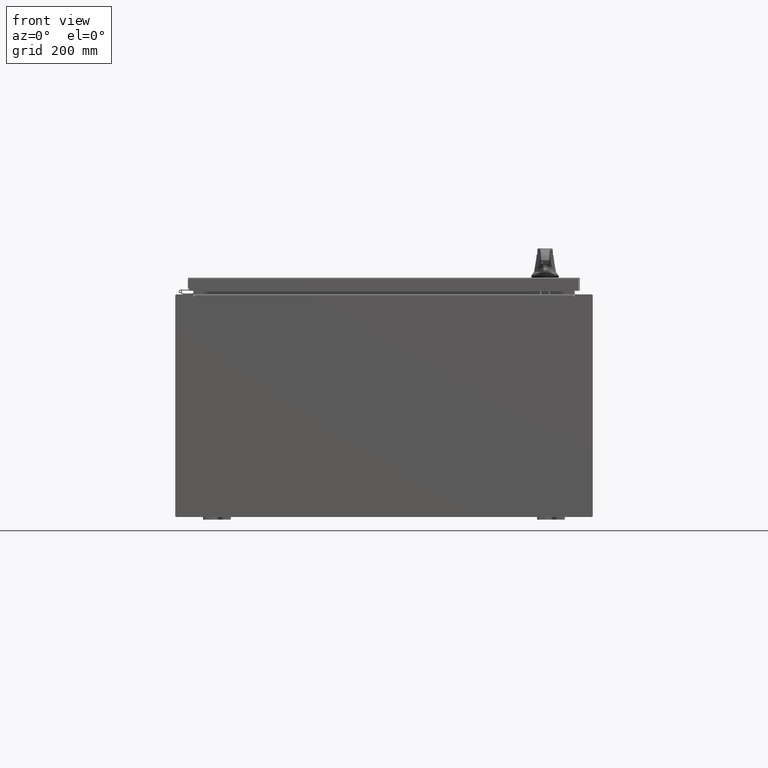
[diagram: clean part render]
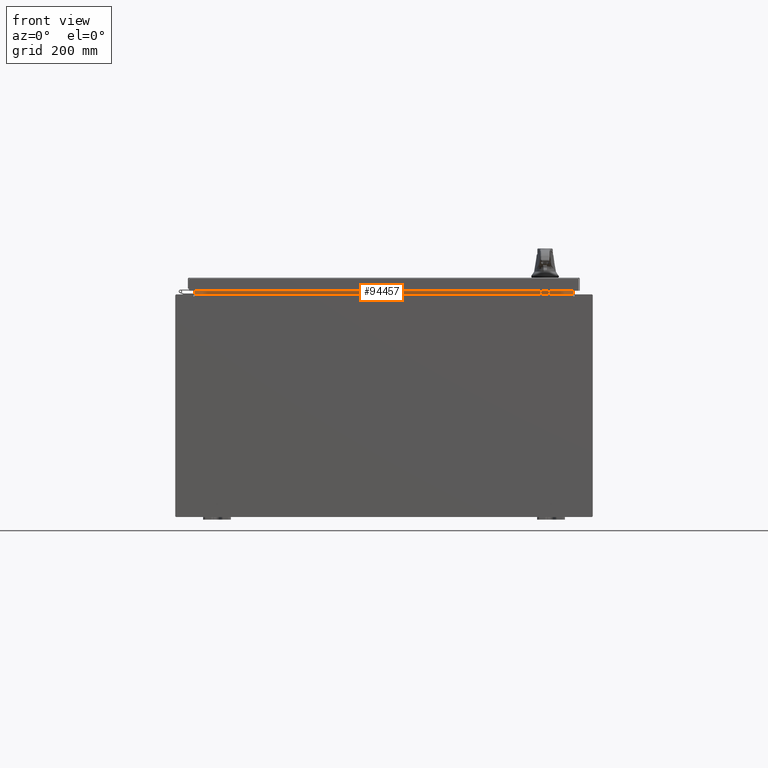
[diagram: same view with one face highlighted and labeled with its STEP entity id]
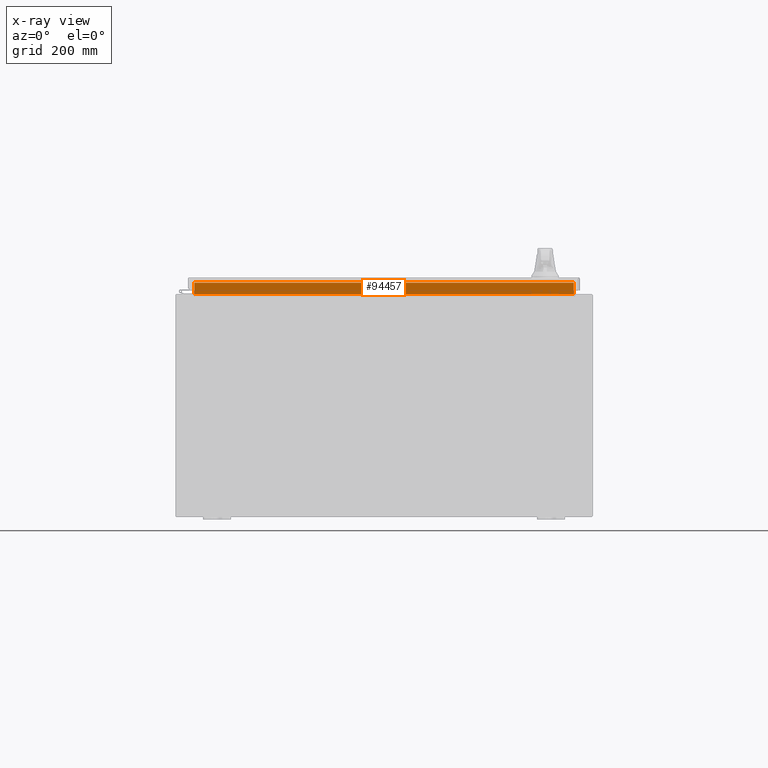
[diagram: x-ray of the same camera — body ghosted, the highlighted face saturated]
A machine part, front view. The second image highlights one B-rep face of the part: STEP entity #94457.
The next image is the same camera in x-ray: the body ghosted, the highlighted face saturated — about 0% of this face is hidden behind the body in this view.
In plain terms, the highlighted planar face has unit normal (0, -1, 0).
Its self-contained STEP definition (entity closure, byte-faithful):
#983 = EDGE_CURVE ( 'NONE', #94139, #96204, #80551, .T. ) ;
#1146 = LINE ( 'NONE', #55698, #100165 ) ;
#2982 = CARTESIAN_POINT ( 'NONE',  ( 0.0000000000000000000, -1.300299999999999800, 0.0000000000000000000 ) ) ;
#10552 = EDGE_CURVE ( 'NONE', #30023, #94139, #1146, .T. ) ;
#11100 = CARTESIAN_POINT ( 'NONE',  ( 13.63720000000000400, -1.300299999999999800, 8.837600000000001900 ) ) ;
#12606 = DIRECTION ( 'NONE',  ( 0.0000000000000000000, -0.0000000000000000000, 1.000000000000000000 ) ) ;
#13440 = DIRECTION ( 'NONE',  ( -0.0000000000000000000, -0.0000000000000000000, -1.000000000000000000 ) ) ;
#13976 = LINE ( 'NONE', #114149, #87567 ) ;
#17795 = DIRECTION ( 'NONE',  ( 1.000000000000000000, 0.0000000000000000000, -1.201939398262515500E-016 ) ) ;
#18945 = DIRECTION ( 'NONE',  ( -0.0000000000000000000, -0.0000000000000000000, 1.000000000000000000 ) ) ;
#22597 = ORIENTED_EDGE ( 'NONE', *, *, #110972, .F. ) ;
#26550 = CARTESIAN_POINT ( 'NONE',  ( -13.63719999999999800, -1.300299999999999800, 8.013000000000003500 ) ) ;
#30023 = VERTEX_POINT ( 'NONE', #98102 ) ;
#36788 = EDGE_LOOP ( 'NONE', ( #74585, #117698, #22597, #97293 ) ) ;
#50761 = PLANE ( 'NONE',  #90498 ) ;
#55698 = CARTESIAN_POINT ( 'NONE',  ( -13.63719999999999800, -1.300299999999999800, 8.000000000000003600 ) ) ;
#59966 = CARTESIAN_POINT ( 'NONE',  ( 13.63720000000000400, -1.300299999999999300, 8.837600000000001900 ) ) ;
#66176 = FACE_OUTER_BOUND ( 'NONE', #36788, .T. ) ;
#70035 = DIRECTION ( 'NONE',  ( 0.0000000000000000000, 1.000000000000000000, 0.0000000000000000000 ) ) ;
#74585 = ORIENTED_EDGE ( 'NONE', *, *, #10552, .F. ) ;
#78559 = VERTEX_POINT ( 'NONE', #11100 ) ;
#80551 = LINE ( 'NONE', #117119, #109100 ) ;
#87567 = VECTOR ( 'NONE', #18945, 39.37007874015748100 ) ;
#89394 = EDGE_CURVE ( 'NONE', #78559, #30023, #101507, .T. ) ;
#90498 = AXIS2_PLACEMENT_3D ( 'NONE', #2982, #70035, #12606 ) ;
#91258 = CARTESIAN_POINT ( 'NONE',  ( 13.63720000000000000, -1.300299999999999800, 8.013000000000003500 ) ) ;
#94139 = VERTEX_POINT ( 'NONE', #26550 ) ;
#94457 = ADVANCED_FACE ( 'NONE', ( #66176 ), #50761, .T. ) ;
#96204 = VERTEX_POINT ( 'NONE', #91258 ) ;
#97293 = ORIENTED_EDGE ( 'NONE', *, *, #983, .F. ) ;
#98102 = CARTESIAN_POINT ( 'NONE',  ( -13.63719999999999800, -1.300299999999999300, 8.837600000000001900 ) ) ;
#98496 = VECTOR ( 'NONE', #117515, 39.37007874015748100 ) ;
#100165 = VECTOR ( 'NONE', #13440, 39.37007874015748100 ) ;
#101507 = LINE ( 'NONE', #59966, #98496 ) ;
#109100 = VECTOR ( 'NONE', #17795, 39.37007874015748100 ) ;
#110972 = EDGE_CURVE ( 'NONE', #96204, #78559, #13976, .T. ) ;
#114149 = CARTESIAN_POINT ( 'NONE',  ( 13.63720000000000400, -1.300299999999999800, 8.925300000000001800 ) ) ;
#117119 = CARTESIAN_POINT ( 'NONE',  ( -13.63719999999999800, -1.300300000000000200, 8.013000000000005200 ) ) ;
#117515 = DIRECTION ( 'NONE',  ( -1.000000000000000000, -0.0000000000000000000, -0.0000000000000000000 ) ) ;
#117698 = ORIENTED_EDGE ( 'NONE', *, *, #89394, .F. ) ;